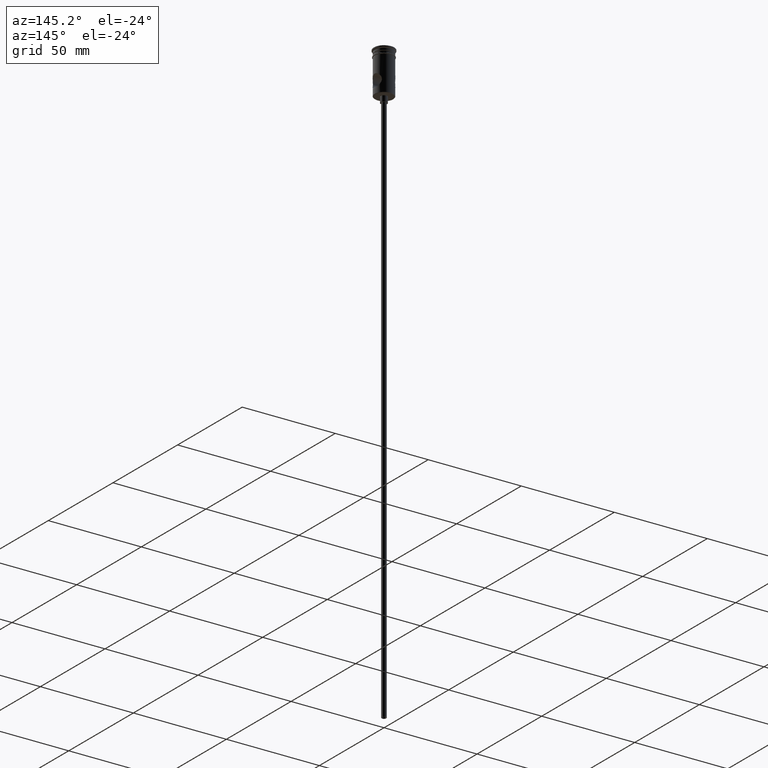
[diagram: clean part render]
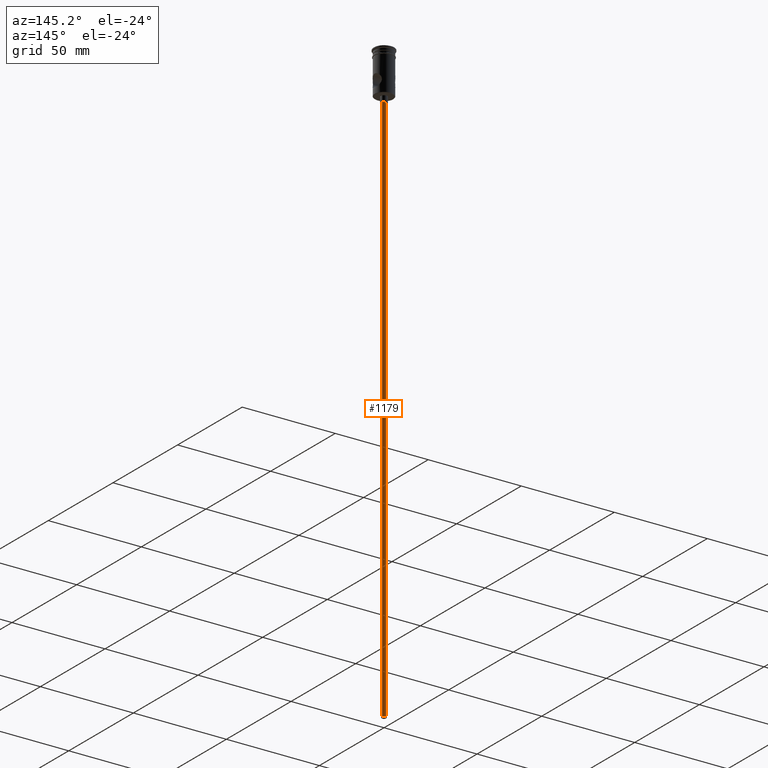
[diagram: same view with one face highlighted and labeled with its STEP entity id]
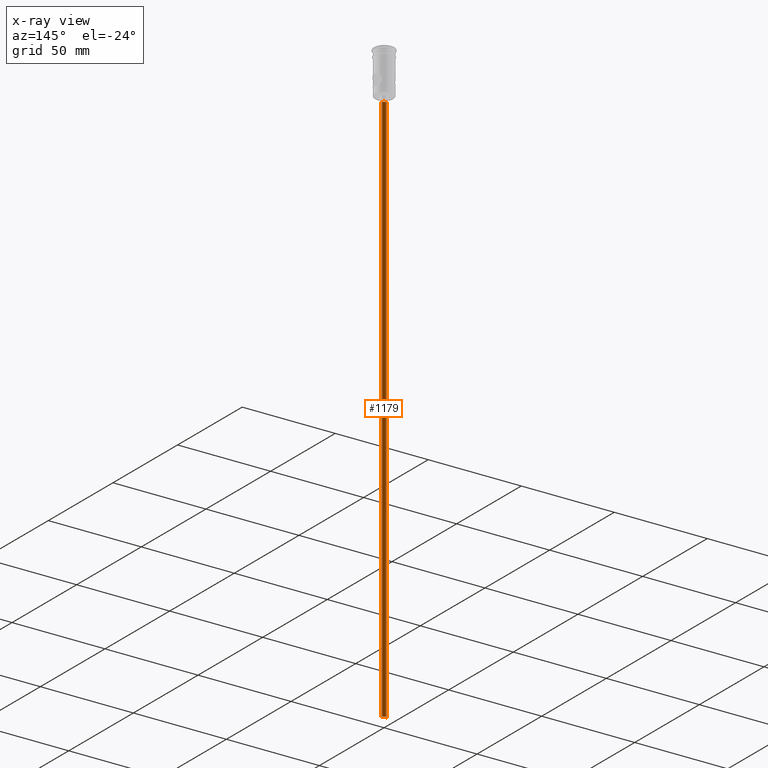
[diagram: x-ray of the same camera — body ghosted, the highlighted face saturated]
A machine part, auxiliary view. The second image highlights one B-rep face of the part: STEP entity #1179.
The next image is the same camera in x-ray: the body ghosted, the highlighted face saturated — about 0% of this face is hidden behind the body in this view.
In plain terms, the highlighted cylindrical surface (edge-blend (fillet) strip) has radius 1.25 mm, axis along (-0, -0, 1).
Its self-contained STEP definition (entity closure, byte-faithful):
#4 = DIRECTION ( 'NONE',  ( -0.000000000000000000, -0.000000000000000000, 1.000000000000000000 ) ) ;
#32 = DIRECTION ( 'NONE',  ( -1.000000000000000000, 0.000000000000000000, 0.000000000000000000 ) ) ;
#68 = CIRCLE ( 'NONE', #245, 1.250000000000000000 ) ;
#114 = DIRECTION ( 'NONE',  ( -1.000000000000000000, 0.000000000000000000, 0.000000000000000000 ) ) ;
#222 = DIRECTION ( 'NONE',  ( 0.000000000000000000, 0.000000000000000000, -1.000000000000000000 ) ) ;
#245 = AXIS2_PLACEMENT_3D ( 'NONE', #1210, #222, #114 ) ;
#261 = CARTESIAN_POINT ( 'NONE',  ( -1.250000000000000000, 1.530808498934191571E-16, -322.5000000000000000 ) ) ;
#356 = CYLINDRICAL_SURFACE ( 'NONE', #394, 1.250000000000000000 ) ;
#372 = CARTESIAN_POINT ( 'NONE',  ( 1.250000000000000000, 0.000000000000000000, -322.5000000000000000 ) ) ;
#394 = AXIS2_PLACEMENT_3D ( 'NONE', #572, #1228, #1330 ) ;
#523 = EDGE_CURVE ( 'NONE', #1263, #1208, #966, .T. ) ;
#572 = CARTESIAN_POINT ( 'NONE',  ( 0.000000000000000000, 0.000000000000000000, -322.5000000000000000 ) ) ;
#597 = ORIENTED_EDGE ( 'NONE', *, *, #523, .T. ) ;
#691 = VECTOR ( 'NONE', #4, 1000.000000000000000 ) ;
#718 = EDGE_LOOP ( 'NONE', ( #1137, #1177, #597, #1258 ) ) ;
#726 = DIRECTION ( 'NONE',  ( -0.000000000000000000, -0.000000000000000000, 1.000000000000000000 ) ) ;
#737 = VECTOR ( 'NONE', #726, 1000.000000000000000 ) ;
#779 = DIRECTION ( 'NONE',  ( 0.000000000000000000, 0.000000000000000000, -1.000000000000000000 ) ) ;
#784 = CARTESIAN_POINT ( 'NONE',  ( 1.250000000000000000, 0.000000000000000000, -25.50000000000000000 ) ) ;
#941 = EDGE_CURVE ( 'NONE', #1370, #1208, #951, .T. ) ;
#951 = LINE ( 'NONE', #372, #737 ) ;
#966 = CIRCLE ( 'NONE', #1285, 1.250000000000000000 ) ;
#979 = VERTEX_POINT ( 'NONE', #261 ) ;
#1018 = CARTESIAN_POINT ( 'NONE',  ( 1.250000000000000000, 0.000000000000000000, -322.5000000000000000 ) ) ;
#1101 = FACE_OUTER_BOUND ( 'NONE', #718, .T. ) ;
#1137 = ORIENTED_EDGE ( 'NONE', *, *, #1226, .F. ) ;
#1177 = ORIENTED_EDGE ( 'NONE', *, *, #1186, .T. ) ;
#1179 = ADVANCED_FACE ( 'NONE', ( #1101 ), #356, .T. ) ;
#1186 = EDGE_CURVE ( 'NONE', #979, #1263, #1352, .T. ) ;
#1208 = VERTEX_POINT ( 'NONE', #784 ) ;
#1210 = CARTESIAN_POINT ( 'NONE',  ( 0.000000000000000000, 0.000000000000000000, -322.5000000000000000 ) ) ;
#1226 = EDGE_CURVE ( 'NONE', #979, #1370, #68, .T. ) ;
#1228 = DIRECTION ( 'NONE',  ( -0.000000000000000000, -0.000000000000000000, 1.000000000000000000 ) ) ;
#1258 = ORIENTED_EDGE ( 'NONE', *, *, #941, .F. ) ;
#1262 = CARTESIAN_POINT ( 'NONE',  ( -1.250000000000000000, 1.530808498934191571E-16, -25.50000000000000000 ) ) ;
#1263 = VERTEX_POINT ( 'NONE', #1262 ) ;
#1285 = AXIS2_PLACEMENT_3D ( 'NONE', #1344, #779, #32 ) ;
#1330 = DIRECTION ( 'NONE',  ( 1.000000000000000000, 0.000000000000000000, 0.000000000000000000 ) ) ;
#1344 = CARTESIAN_POINT ( 'NONE',  ( 0.000000000000000000, 0.000000000000000000, -25.50000000000000000 ) ) ;
#1352 = LINE ( 'NONE', #1439, #691 ) ;
#1370 = VERTEX_POINT ( 'NONE', #1018 ) ;
#1439 = CARTESIAN_POINT ( 'NONE',  ( -1.250000000000000000, 1.530808498934191571E-16, -322.5000000000000000 ) ) ;